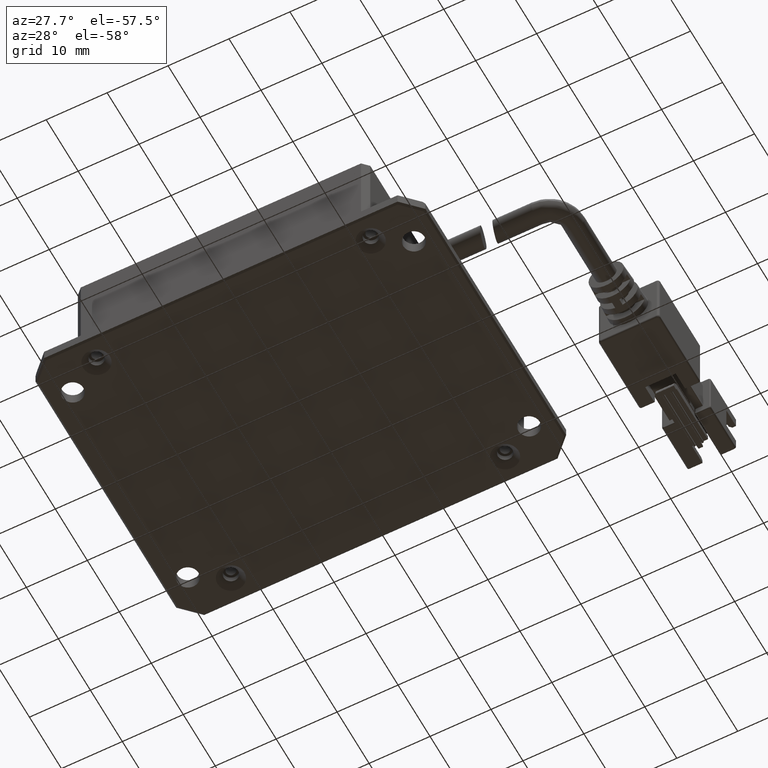
[diagram: clean part render]
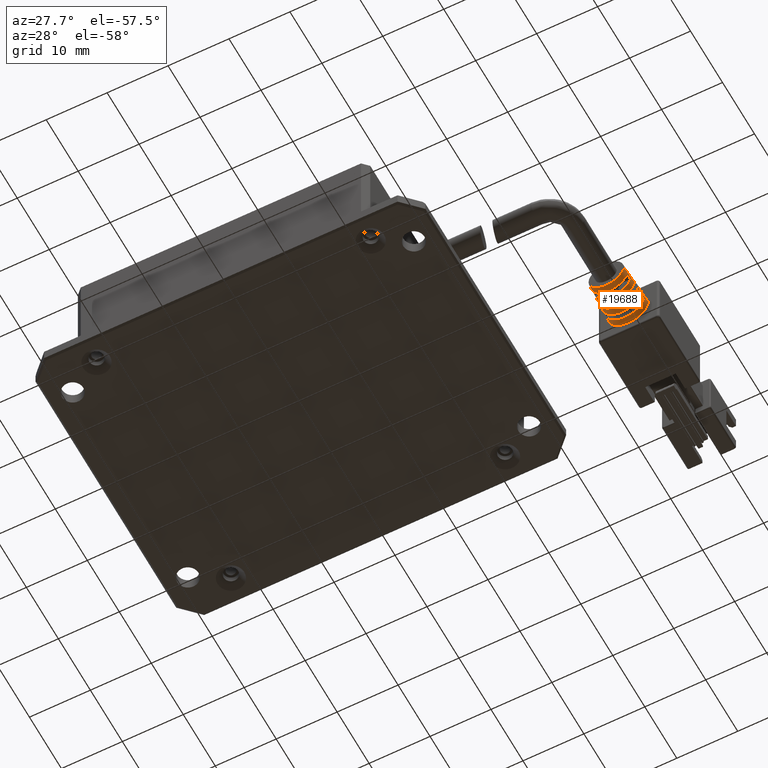
[diagram: same view with one face highlighted and labeled with its STEP entity id]
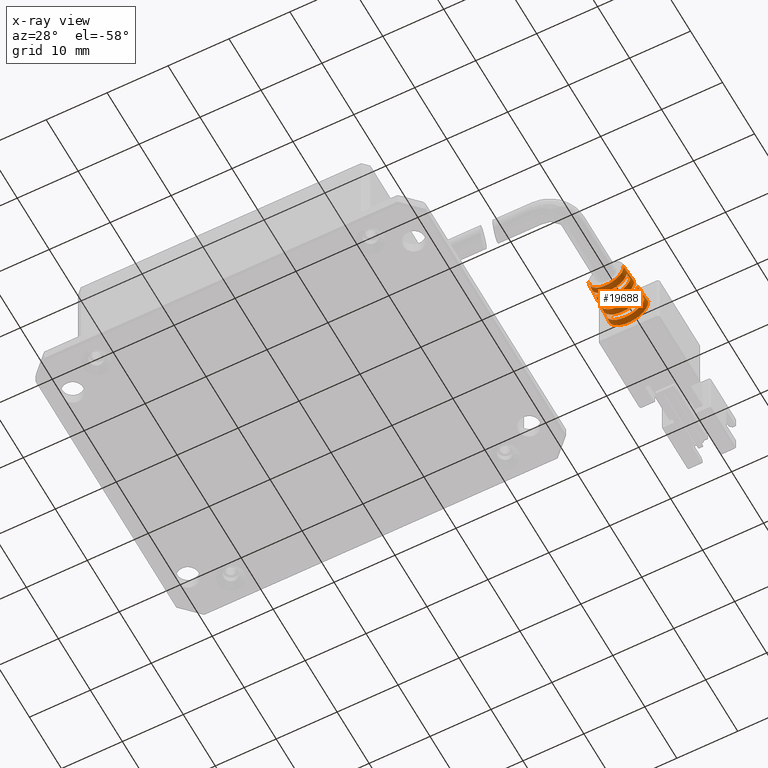
[diagram: x-ray of the same camera — body ghosted, the highlighted face saturated]
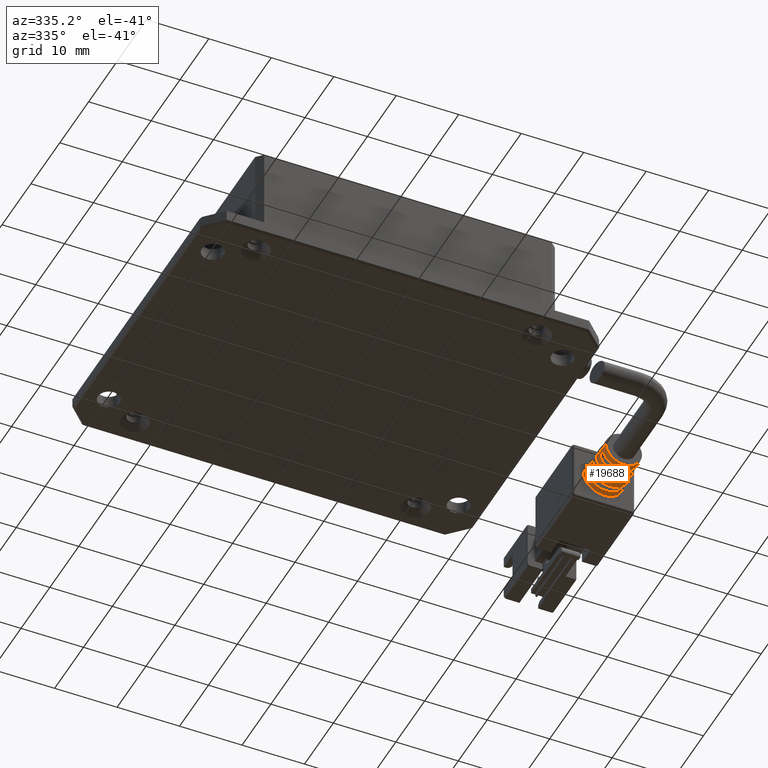
[diagram: same view with one face highlighted and labeled with its STEP entity id]
A machine part, auxiliary view. The second image highlights one B-rep face of the part: STEP entity #19688.
The next image is the same camera in x-ray: the body ghosted, the highlighted face saturated — about 0% of this face is hidden behind the body in this view.
A second angle (auxiliary view) of the same face is appended — the face is thin or edge-on in the first view.
In plain terms, the highlighted conical surface has half-angle 3 deg.
Its self-contained STEP definition (entity closure, byte-faithful):
#83 = CARTESIAN_POINT ( 'NONE',  ( 47.09316533027874400, 11.29095074454948400, 4.999999999983692200 ) ) ;
#269 = ORIENTED_EDGE ( 'NONE', *, *, #3706, .T. ) ;
#290 = LINE ( 'NONE', #19926, #12385 ) ;
#520 = CARTESIAN_POINT ( 'NONE',  ( 44.00574161937815600, 11.29095074455140200, 4.399999999983692500 ) ) ;
#573 = EDGE_CURVE ( 'NONE', #1052, #6056, #17252, .T. ) ;
#656 = CARTESIAN_POINT ( 'NONE',  ( 47.09316533027874400, 6.290950744554031400, 4.999999999983692200 ) ) ;
#692 = CARTESIAN_POINT ( 'NONE',  ( 50.18058904117948100, 11.29095074455425900, 4.399999999983692500 ) ) ;
#778 = DIRECTION ( 'NONE',  ( -0.05233595624279531500, 0.9986295347545816000, -1.094872672590910900E-017 ) ) ;
#952 = CARTESIAN_POINT ( 'NONE',  ( 49.97631087529724400, 6.290950744554031400, 4.999999999983692200 ) ) ;
#1001 = CARTESIAN_POINT ( 'NONE',  ( 49.96674729706215600, 7.290950744573130700, 4.399999999983693400 ) ) ;
#1034 = DIRECTION ( 'NONE',  ( 1.000000000000000000, 0.0000000000000000000, 0.0000000000000000000 ) ) ;
#1052 = VERTEX_POINT ( 'NONE', #12642 ) ;
#1403 = CARTESIAN_POINT ( 'NONE',  ( 50.02026484285691100, 8.290950744562678700, 4.399999999983693400 ) ) ;
#1613 = ORIENTED_EDGE ( 'NONE', *, *, #17903, .T. ) ;
#1637 = DIRECTION ( 'NONE',  ( 3.081487911019577400E-033, -1.000000000000000000, 2.672764710092188000E-049 ) ) ;
#1679 = DIRECTION ( 'NONE',  ( 1.000000000000000000, 0.0000000000000000000, -8.273235679558057500E-016 ) ) ;
#1724 = EDGE_CURVE ( 'NONE', #16383, #15939, #290, .T. ) ;
#1782 = EDGE_CURVE ( 'NONE', #15682, #3304, #14102, .T. ) ;
#1992 = CARTESIAN_POINT ( 'NONE',  ( 50.34316533026584000, 13.29095074433166000, 4.999999999983692200 ) ) ;
#2025 = ORIENTED_EDGE ( 'NONE', *, *, #4619, .T. ) ;
#2070 = DIRECTION ( 'NONE',  ( -3.081487911019577400E-033, 1.000000000000000000, -2.672764710092188000E-049 ) ) ;
#2194 = DIRECTION ( 'NONE',  ( 1.000000000000000000, 0.0000000000000000000, 0.0000000000000000000 ) ) ;
#2198 = CIRCLE ( 'NONE', #14037, 3.197592220717360200 ) ;
#2282 = EDGE_CURVE ( 'NONE', #2621, #3304, #20064, .T. ) ;
#2438 = AXIS2_PLACEMENT_3D ( 'NONE', #11084, #1637, #12663 ) ;
#2444 = VERTEX_POINT ( 'NONE', #12633 ) ;
#2621 = VERTEX_POINT ( 'NONE', #5142 ) ;
#2743 = B_SPLINE_CURVE_WITH_KNOTS ( 'NONE', 3,
 ( #11471, #19461, #9968, #520 ),
 .UNSPECIFIED., .F., .F.,
 ( 4, 4 ),
 ( 2.341740480690032800E-015, 0.001001423258043091700 ),
 .UNSPECIFIED. ) ;
#2831 = AXIS2_PLACEMENT_3D ( 'NONE', #14504, #5063, #16060 ) ;
#2895 = CIRCLE ( 'NONE', #11279, 2.883145545018506200 ) ;
#2935 = CIRCLE ( 'NONE', #16414, 3.040368882866441200 ) ;
#3304 = VERTEX_POINT ( 'NONE', #17659 ) ;
#3581 = EDGE_CURVE ( 'NONE', #6056, #18456, #4476, .T. ) ;
#3600 = DIRECTION ( 'NONE',  ( 0.05233595624279531500, 0.9986295347545816000, 4.539420596603585100E-018 ) ) ;
#3706 = EDGE_CURVE ( 'NONE', #15682, #16383, #2895, .T. ) ;
#3922 = CARTESIAN_POINT ( 'NONE',  ( 50.34316533027774900, 13.29095074455903400, 4.999999999983692200 ) ) ;
#4078 = CARTESIAN_POINT ( 'NONE',  ( 49.98459327750433100, 7.624283713995430900, 4.399999999983693400 ) ) ;
#4170 = CARTESIAN_POINT ( 'NONE',  ( 47.69316533027874500, 10.29095074456608200, 1.965981627932517100 ) ) ;
#4273 = AXIS2_PLACEMENT_3D ( 'NONE', #11549, #2070, #13123 ) ;
#4476 = B_SPLINE_CURVE_WITH_KNOTS ( 'NONE', 3,
 ( #8809, #4078, #5706, #7282 ),
 .UNSPECIFIED., .F., .F.,
 ( 4, 4 ),
 ( 2.821323884305459600E-015, 0.001001431039903067500 ),
 .UNSPECIFIED. ) ;
#4520 = CARTESIAN_POINT ( 'NONE',  ( 44.16606581770064800, 8.290950744561307300, 4.399999999983692500 ) ) ;
#4619 = EDGE_CURVE ( 'NONE', #14218, #12721, #14482, .T. ) ;
#4982 = VERTEX_POINT ( 'NONE', #5621 ) ;
#5063 = DIRECTION ( 'NONE',  ( -3.081487911019577400E-033, 1.000000000000000000, -2.672764710092188000E-049 ) ) ;
#5142 = CARTESIAN_POINT ( 'NONE',  ( 47.69316533027874500, 9.290950744543735600, 2.019422380812576200 ) ) ;
#5252 = ORIENTED_EDGE ( 'NONE', *, *, #2282, .T. ) ;
#5254 = ORIENTED_EDGE ( 'NONE', *, *, #1724, .T. ) ;
#5621 = CARTESIAN_POINT ( 'NONE',  ( 43.95236988803991100, 12.29095074457085700, 4.399999999983691600 ) ) ;
#5674 = DIRECTION ( 'NONE',  ( -3.081487911019577400E-033, 1.000000000000000000, -2.672764710092188000E-049 ) ) ;
#5706 = CARTESIAN_POINT ( 'NONE',  ( 50.00243233515712400, 7.957617054111669800, 4.399999999983693400 ) ) ;
#5727 = VECTOR ( 'NONE', #19294, 1000.000000000000200 ) ;
#5778 = CARTESIAN_POINT ( 'NONE',  ( 47.69316533027874500, 9.957617091215672300, 1.983789223055079800 ) ) ;
#5984 = EDGE_CURVE ( 'NONE', #11778, #9241, #9940, .T. ) ;
#6056 = VERTEX_POINT ( 'NONE', #1001 ) ;
#6111 = CARTESIAN_POINT ( 'NONE',  ( 44.20173738305315000, 7.624283713995428300, 4.399999999983693400 ) ) ;
#6431 = EDGE_CURVE ( 'NONE', #20522, #2621, #19499, .T. ) ;
#6624 = B_SPLINE_CURVE_WITH_KNOTS ( 'NONE', 3,
 ( #692, #8556, #18044, #11705 ),
 .UNSPECIFIED., .F., .F.,
 ( 4, 4 ),
 ( 9.466711998563855400E-016, 0.001001423258045926400 ),
 .UNSPECIFIED. ) ;
#6656 = LINE ( 'NONE', #16324, #15045 ) ;
#6657 = EDGE_CURVE ( 'NONE', #15826, #17385, #20294, .T. ) ;
#6860 = VECTOR ( 'NONE', #3600, 1000.000000000000200 ) ;
#6896 = DIRECTION ( 'NONE',  ( -0.05233595624279531500, 0.9986295347545816000, -1.094872672590910900E-017 ) ) ;
#7210 = AXIS2_PLACEMENT_3D ( 'NONE', #19975, #10473, #1034 ) ;
#7230 = CARTESIAN_POINT ( 'NONE',  ( 47.09316533027874400, 9.290950744539934200, 4.999999999983692200 ) ) ;
#7282 = CARTESIAN_POINT ( 'NONE',  ( 50.02026484285691100, 8.290950744562678700, 4.399999999983693400 ) ) ;
#7370 = CARTESIAN_POINT ( 'NONE',  ( 47.69316533027874500, 9.290950744543735600, 2.019422380812576200 ) ) ;
#7427 = ORIENTED_EDGE ( 'NONE', *, *, #15841, .T. ) ;
#7527 = DIRECTION ( 'NONE',  ( -3.081487911019577400E-033, 1.000000000000000000, -2.672764710092188000E-049 ) ) ;
#7853 = ORIENTED_EDGE ( 'NONE', *, *, #12972, .T. ) ;
#8133 = DIRECTION ( 'NONE',  ( -3.081487911019577400E-033, 1.000000000000000000, -2.672764710092188000E-049 ) ) ;
#8193 = DIRECTION ( 'NONE',  ( 1.000000000000000000, 0.0000000000000000000, 0.0000000000000000000 ) ) ;
#8215 = CARTESIAN_POINT ( 'NONE',  ( 50.34316533026584000, 13.29095074433166000, 4.999999999983692200 ) ) ;
#8239 = ORIENTED_EDGE ( 'NONE', *, *, #5984, .T. ) ;
#8433 = AXIS2_PLACEMENT_3D ( 'NONE', #17589, #8133, #8193 ) ;
#8556 = CARTESIAN_POINT ( 'NONE',  ( 50.19838510704384000, 11.62428378490377600, 4.399999999983692500 ) ) ;
#8809 = CARTESIAN_POINT ( 'NONE',  ( 49.96674729706215600, 7.290950744573130700, 4.399999999983693400 ) ) ;
#8822 = DIRECTION ( 'NONE',  ( 1.000000000000000000, 0.0000000000000000000, -8.558452326718922600E-016 ) ) ;
#9009 = EDGE_LOOP ( 'NONE', ( #269, #5254, #18955, #8239, #14669, #11668, #2025, #17170, #20358, #14769, #5252, #19292 ) ) ;
#9032 = EDGE_CURVE ( 'NONE', #15939, #11778, #2935, .T. ) ;
#9213 = CARTESIAN_POINT ( 'NONE',  ( 43.84316533027973200, 13.29095074455903400, 4.999999999983691300 ) ) ;
#9241 = VERTEX_POINT ( 'NONE', #15806 ) ;
#9940 = B_SPLINE_CURVE_WITH_KNOTS ( 'NONE', 3,
 ( #11824, #10251, #19756, #13406 ),
 .UNSPECIFIED., .F., .F.,
 ( 4, 4 ),
 ( 1.949140732119931800E-015, 0.001001426938979540300 ),
 .UNSPECIFIED. ) ;
#9968 = CARTESIAN_POINT ( 'NONE',  ( 43.98794555351364700, 11.62428378490378100, 4.399999999983692500 ) ) ;
#10251 = CARTESIAN_POINT ( 'NONE',  ( 46.49316533027874200, 9.624283752028095100, 2.001602699982295800 ) ) ;
#10473 = DIRECTION ( 'NONE',  ( 3.081487911019577400E-033, -1.000000000000000000, 2.672764710092188000E-049 ) ) ;
#10510 = CARTESIAN_POINT ( 'NONE',  ( 47.09316533027874400, 7.290950744587227900, 4.999999999983692200 ) ) ;
#10641 = DIRECTION ( 'NONE',  ( 3.081487911019577400E-033, -1.000000000000000000, 2.672764710092188000E-049 ) ) ;
#10708 = DIRECTION ( 'NONE',  ( 1.000000000000000000, 0.0000000000000000000, 0.0000000000000000000 ) ) ;
#10758 = EDGE_LOOP ( 'NONE', ( #12685, #1613, #7427, #12267 ) ) ;
#10812 = CARTESIAN_POINT ( 'NONE',  ( 44.00574161937815600, 11.29095074455140200, 4.399999999983692500 ) ) ;
#10839 = EDGE_CURVE ( 'NONE', #2444, #14218, #6656, .T. ) ;
#11031 = CIRCLE ( 'NONE', #4273, 2.987961103584790800 ) ;
#11084 = CARTESIAN_POINT ( 'NONE',  ( 47.09316533027874400, 9.290950744539934200, 4.999999999983692200 ) ) ;
#11119 = DIRECTION ( 'NONE',  ( 3.081487911019577400E-033, -1.000000000000000000, 2.672764710092188000E-049 ) ) ;
#11279 = AXIS2_PLACEMENT_3D ( 'NONE', #656, #11669, #2194 ) ;
#11462 = ORIENTED_EDGE ( 'NONE', *, *, #16986, .T. ) ;
#11471 = CARTESIAN_POINT ( 'NONE',  ( 43.95236988803991100, 12.29095074457085700, 4.399999999983691600 ) ) ;
#11549 = CARTESIAN_POINT ( 'NONE',  ( 47.09316533027874400, 8.290950744563581100, 4.999999999983692200 ) ) ;
#11668 = ORIENTED_EDGE ( 'NONE', *, *, #10839, .T. ) ;
#11669 = DIRECTION ( 'NONE',  ( -3.081487911019577400E-033, 1.000000000000000000, -2.672764710092188000E-049 ) ) ;
#11705 = CARTESIAN_POINT ( 'NONE',  ( 50.23396077251794600, 12.29095074457793800, 4.399999999983692500 ) ) ;
#11738 = B_SPLINE_CURVE_WITH_KNOTS ( 'NONE', 3,
 ( #4520, #12389, #6111, #17169 ),
 .UNSPECIFIED., .F., .F.,
 ( 4, 4 ),
 ( 4.691970052180783900E-016, 0.001001431039896517200 ),
 .UNSPECIFIED. ) ;
#11777 = CARTESIAN_POINT ( 'NONE',  ( 50.18058904117948100, 11.29095074455425900, 4.399999999983692500 ) ) ;
#11778 = VERTEX_POINT ( 'NONE', #13218 ) ;
#11797 = EDGE_CURVE ( 'NONE', #17385, #15761, #6624, .T. ) ;
#11810 = CARTESIAN_POINT ( 'NONE',  ( 50.18594199242981800, 10.29095074457313100, 4.999999999983692200 ) ) ;
#11824 = CARTESIAN_POINT ( 'NONE',  ( 46.49316533027874200, 9.290950744549483900, 2.019422380812268900 ) ) ;
#12267 = ORIENTED_EDGE ( 'NONE', *, *, #573, .T. ) ;
#12385 = VECTOR ( 'NONE', #778, 1000.000000000000200 ) ;
#12389 = CARTESIAN_POINT ( 'NONE',  ( 44.18389832540035700, 7.957617054111668900, 4.399999999983692500 ) ) ;
#12498 = AXIS2_PLACEMENT_3D ( 'NONE', #15097, #5674, #16683 ) ;
#12633 = CARTESIAN_POINT ( 'NONE',  ( 44.00038866812766300, 10.29095074457313100, 4.999999999983691300 ) ) ;
#12642 = CARTESIAN_POINT ( 'NONE',  ( 44.21958336349486300, 7.290950744581584400, 4.399999999983693400 ) ) ;
#12654 = CIRCLE ( 'NONE', #12498, 3.092776662151075500 ) ;
#12663 = DIRECTION ( 'NONE',  ( 1.000000000000000000, 0.0000000000000000000, 8.558452326718922600E-016 ) ) ;
#12685 = ORIENTED_EDGE ( 'NONE', *, *, #3581, .T. ) ;
#12721 = VERTEX_POINT ( 'NONE', #3922 ) ;
#12972 = EDGE_CURVE ( 'NONE', #4982, #15826, #2743, .T. ) ;
#13081 = VERTEX_POINT ( 'NONE', #11810 ) ;
#13123 = DIRECTION ( 'NONE',  ( 1.000000000000000000, 0.0000000000000000000, 0.0000000000000000000 ) ) ;
#13143 = VERTEX_POINT ( 'NONE', #15195 ) ;
#13218 = CARTESIAN_POINT ( 'NONE',  ( 46.49316533027874200, 9.290950744549483900, 2.019422380812268900 ) ) ;
#13371 = CONICAL_SURFACE ( 'NONE', #8433, 3.249999999987096500, 0.05235987755968116900 ) ;
#13406 = CARTESIAN_POINT ( 'NONE',  ( 46.49316533027874200, 10.29095074457030800, 1.965981627932291500 ) ) ;
#13611 = CARTESIAN_POINT ( 'NONE',  ( 47.69316533027874500, 10.29095074456608200, 1.965981627932517100 ) ) ;
#13703 = CARTESIAN_POINT ( 'NONE',  ( 50.23396077251794600, 12.29095074457793800, 4.399999999983692500 ) ) ;
#13706 = EDGE_CURVE ( 'NONE', #13081, #20522, #12654, .T. ) ;
#14037 = AXIS2_PLACEMENT_3D ( 'NONE', #16984, #7527, #18589 ) ;
#14102 = LINE ( 'NONE', #8215, #5727 ) ;
#14180 = AXIS2_PLACEMENT_3D ( 'NONE', #10510, #10641, #10708 ) ;
#14197 = EDGE_LOOP ( 'NONE', ( #16141, #11462, #7853, #16276 ) ) ;
#14218 = VERTEX_POINT ( 'NONE', #9213 ) ;
#14246 = CARTESIAN_POINT ( 'NONE',  ( 44.05279644741229800, 9.290950744539934200, 4.999999999983691300 ) ) ;
#14482 = CIRCLE ( 'NONE', #7210, 3.249999999999010600 ) ;
#14504 = CARTESIAN_POINT ( 'NONE',  ( 47.09316533027874400, 10.29095074457313100, 4.999999999983692200 ) ) ;
#14669 = ORIENTED_EDGE ( 'NONE', *, *, #20265, .T. ) ;
#14769 = ORIENTED_EDGE ( 'NONE', *, *, #6431, .T. ) ;
#15045 = VECTOR ( 'NONE', #6896, 1000.000000000000200 ) ;
#15097 = CARTESIAN_POINT ( 'NONE',  ( 47.09316533027874400, 10.29095074457313100, 4.999999999983692200 ) ) ;
#15195 = CARTESIAN_POINT ( 'NONE',  ( 44.16606581770064800, 8.290950744561307300, 4.399999999983692500 ) ) ;
#15240 = LINE ( 'NONE', #1992, #6860 ) ;
#15334 = CARTESIAN_POINT ( 'NONE',  ( 44.21001978526023600, 6.290950744554031400, 4.999999999983691300 ) ) ;
#15355 = FACE_OUTER_BOUND ( 'NONE', #9009, .T. ) ;
#15682 = VERTEX_POINT ( 'NONE', #952 ) ;
#15761 = VERTEX_POINT ( 'NONE', #13703 ) ;
#15806 = CARTESIAN_POINT ( 'NONE',  ( 46.49316533027874200, 10.29095074457030800, 1.965981627932291500 ) ) ;
#15826 = VERTEX_POINT ( 'NONE', #10812 ) ;
#15833 = FACE_BOUND ( 'NONE', #10758, .T. ) ;
#15841 = EDGE_CURVE ( 'NONE', #13143, #1052, #11738, .T. ) ;
#15939 = VERTEX_POINT ( 'NONE', #14246 ) ;
#16060 = DIRECTION ( 'NONE',  ( 1.000000000000000000, 0.0000000000000000000, 0.0000000000000000000 ) ) ;
#16141 = ORIENTED_EDGE ( 'NONE', *, *, #11797, .T. ) ;
#16276 = ORIENTED_EDGE ( 'NONE', *, *, #6657, .T. ) ;
#16324 = CARTESIAN_POINT ( 'NONE',  ( 43.84316533029164700, 13.29095074433166000, 4.999999999983691300 ) ) ;
#16383 = VERTEX_POINT ( 'NONE', #15334 ) ;
#16414 = AXIS2_PLACEMENT_3D ( 'NONE', #7230, #18283, #8822 ) ;
#16501 = AXIS2_PLACEMENT_3D ( 'NONE', #83, #11119, #1679 ) ;
#16683 = DIRECTION ( 'NONE',  ( 1.000000000000000000, 0.0000000000000000000, 0.0000000000000000000 ) ) ;
#16803 = CARTESIAN_POINT ( 'NONE',  ( 47.69316533027874500, 9.624283752028095100, 2.001602699982296200 ) ) ;
#16984 = CARTESIAN_POINT ( 'NONE',  ( 47.09316533027874400, 12.29095074458268000, 4.999999999983692200 ) ) ;
#16986 = EDGE_CURVE ( 'NONE', #15761, #4982, #2198, .T. ) ;
#17169 = CARTESIAN_POINT ( 'NONE',  ( 44.21958336349486300, 7.290950744581584400, 4.399999999983693400 ) ) ;
#17170 = ORIENTED_EDGE ( 'NONE', *, *, #17865, .F. ) ;
#17252 = CIRCLE ( 'NONE', #14180, 2.935553324303140400 ) ;
#17385 = VERTEX_POINT ( 'NONE', #11777 ) ;
#17589 = CARTESIAN_POINT ( 'NONE',  ( 47.09316533027874400, 13.29095074433166000, 4.999999999983692200 ) ) ;
#17659 = CARTESIAN_POINT ( 'NONE',  ( 50.13353421314518200, 9.290950744539934200, 4.999999999983692200 ) ) ;
#17865 = EDGE_CURVE ( 'NONE', #13081, #12721, #15240, .T. ) ;
#17903 = EDGE_CURVE ( 'NONE', #18456, #13143, #11031, .T. ) ;
#18044 = CARTESIAN_POINT ( 'NONE',  ( 50.21617559090000800, 11.95761712331011300, 4.399999999983692500 ) ) ;
#18283 = DIRECTION ( 'NONE',  ( 3.081487911019577400E-033, -1.000000000000000000, 2.672764710092188000E-049 ) ) ;
#18456 = VERTEX_POINT ( 'NONE', #1403 ) ;
#18589 = DIRECTION ( 'NONE',  ( 1.000000000000000000, 0.0000000000000000000, 0.0000000000000000000 ) ) ;
#18955 = ORIENTED_EDGE ( 'NONE', *, *, #9032, .T. ) ;
#19197 = CIRCLE ( 'NONE', #2831, 3.092776662151075500 ) ;
#19292 = ORIENTED_EDGE ( 'NONE', *, *, #1782, .F. ) ;
#19294 = DIRECTION ( 'NONE',  ( 0.05233595624279531500, 0.9986295347545816000, 4.539420596603585100E-018 ) ) ;
#19461 = CARTESIAN_POINT ( 'NONE',  ( 43.97015506965748000, 11.95761712331011500, 4.399999999983691600 ) ) ;
#19499 = B_SPLINE_CURVE_WITH_KNOTS ( 'NONE', 3,
 ( #4170, #5778, #16803, #7370 ),
 .UNSPECIFIED., .F., .F.,
 ( 4, 4 ),
 ( 1.405395367116548100E-015, 0.001001426938980521700 ),
 .UNSPECIFIED. ) ;
#19604 = FACE_BOUND ( 'NONE', #14197, .T. ) ;
#19688 = ADVANCED_FACE ( 'NONE', ( #19604, #15833, #15355 ), #13371, .T. ) ;
#19756 = CARTESIAN_POINT ( 'NONE',  ( 46.49316533027874200, 9.957617091215672300, 1.983789223055079800 ) ) ;
#19926 = CARTESIAN_POINT ( 'NONE',  ( 43.84316533029164700, 13.29095074433166000, 4.999999999983691300 ) ) ;
#19975 = CARTESIAN_POINT ( 'NONE',  ( 47.09316533027874400, 13.29095074455903400, 4.999999999983692200 ) ) ;
#20064 = CIRCLE ( 'NONE', #2438, 3.040368882866441200 ) ;
#20265 = EDGE_CURVE ( 'NONE', #9241, #2444, #19197, .T. ) ;
#20294 = CIRCLE ( 'NONE', #16501, 3.145184441432725900 ) ;
#20358 = ORIENTED_EDGE ( 'NONE', *, *, #13706, .T. ) ;
#20522 = VERTEX_POINT ( 'NONE', #13611 ) ;